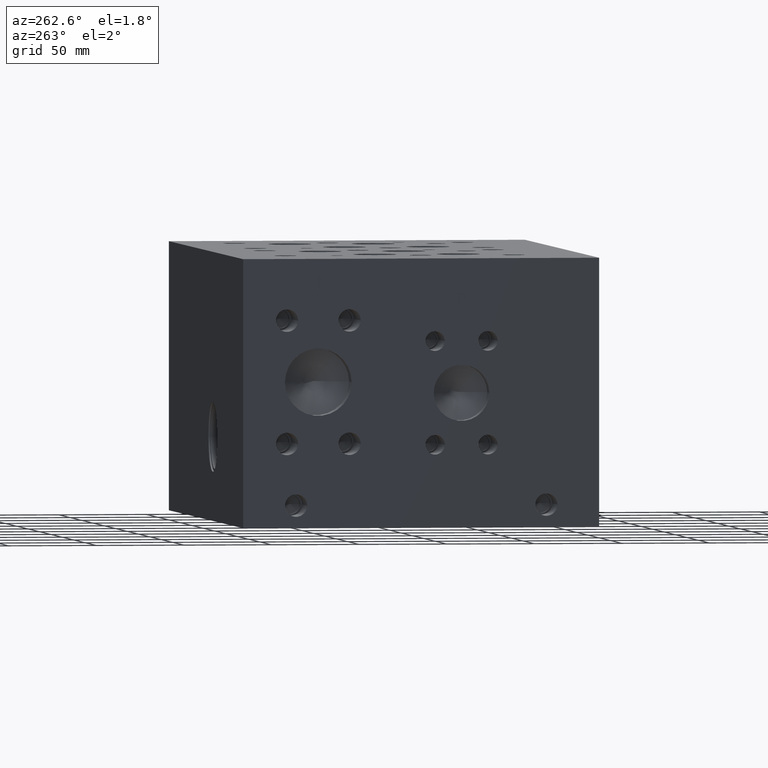
[diagram: clean part render]
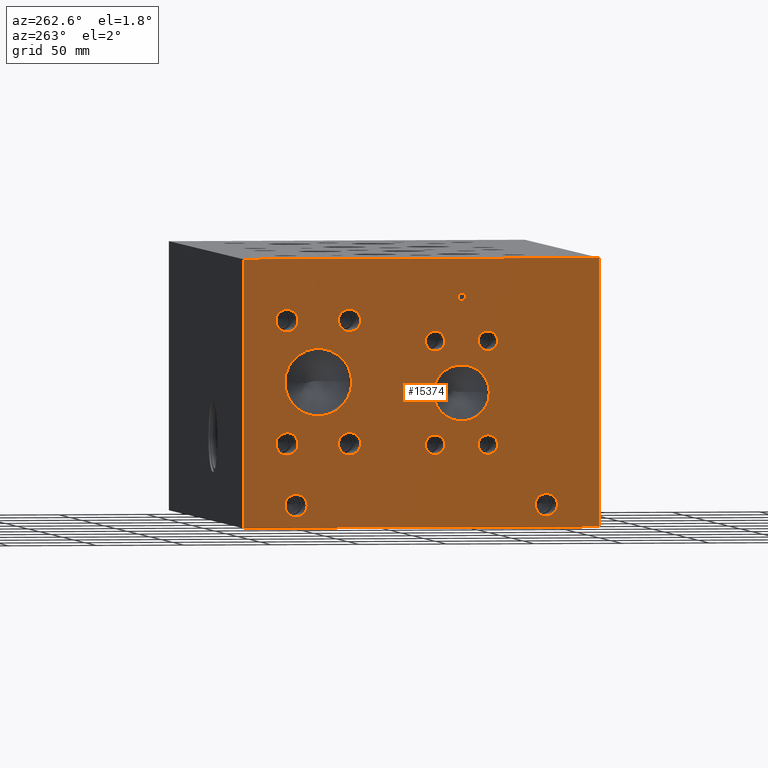
[diagram: same view with one face highlighted and labeled with its STEP entity id]
A machine part, auxiliary view. The second image highlights one B-rep face of the part: STEP entity #15374.
In plain terms, the highlighted planar face has unit normal (-1, 0, 0).
Its self-contained STEP definition (entity closure, byte-faithful):
#308=CIRCLE('',#16107,19.05);
#309=CIRCLE('',#16108,19.05);
#310=CIRCLE('',#16109,6.35);
#311=CIRCLE('',#16110,6.35);
#312=CIRCLE('',#16111,6.35);
#313=CIRCLE('',#16112,6.35);
#314=CIRCLE('',#16113,6.35);
#315=CIRCLE('',#16114,6.35);
#316=CIRCLE('',#16115,6.35);
#317=CIRCLE('',#16116,6.35);
#318=CIRCLE('',#16117,15.875);
#319=CIRCLE('',#16118,15.875);
#320=CIRCLE('',#16119,5.5626);
#321=CIRCLE('',#16120,5.5626);
#322=CIRCLE('',#16121,5.5626);
#323=CIRCLE('',#16122,5.5626);
#324=CIRCLE('',#16123,5.5626);
#325=CIRCLE('',#16124,5.5626);
#326=CIRCLE('',#16125,5.5626);
#327=CIRCLE('',#16126,5.5626);
#328=CIRCLE('',#16127,6.35);
#329=CIRCLE('',#16128,6.35);
#330=CIRCLE('',#16129,6.35);
#331=CIRCLE('',#16130,6.35);
#827=FACE_BOUND('',#2834,.T.);
#828=FACE_BOUND('',#2835,.T.);
#829=FACE_BOUND('',#2836,.T.);
#830=FACE_BOUND('',#2837,.T.);
#831=FACE_BOUND('',#2838,.T.);
#832=FACE_BOUND('',#2839,.T.);
#833=FACE_BOUND('',#2840,.T.);
#834=FACE_BOUND('',#2841,.T.);
#835=FACE_BOUND('',#2842,.T.);
#836=FACE_BOUND('',#2843,.T.);
#837=FACE_BOUND('',#2844,.T.);
#838=FACE_BOUND('',#2845,.T.);
#839=FACE_BOUND('',#2846,.T.);
#840=FACE_BOUND('',#2847,.T.);
#1247=B_SPLINE_CURVE_WITH_KNOTS('',2,(#25530,#25531,#25532,#25533),
 .UNSPECIFIED.,.F.,.F.,(3,1,3),(0.,1.,2.),.UNSPECIFIED.);
#1249=B_SPLINE_CURVE_WITH_KNOTS('',2,(#25551,#25552,#25553,#25554),
 .UNSPECIFIED.,.F.,.F.,(3,1,3),(0.,1.,2.),.UNSPECIFIED.);
#1251=B_SPLINE_CURVE_WITH_KNOTS('',2,(#25600,#25601,#25602,#25603),
 .UNSPECIFIED.,.F.,.F.,(3,1,3),(0.,1.,2.),.UNSPECIFIED.);
#1253=B_SPLINE_CURVE_WITH_KNOTS('',2,(#25618,#25619,#25620,#25621),
 .UNSPECIFIED.,.F.,.F.,(3,1,3),(0.,1.,2.),.UNSPECIFIED.);
#1936=FACE_OUTER_BOUND('',#2833,.T.);
#2833=EDGE_LOOP('',(#12443,#12444,#12445,#12446));
#2834=EDGE_LOOP('',(#12447,#12448));
#2835=EDGE_LOOP('',(#12449,#12450));
#2836=EDGE_LOOP('',(#12451,#12452));
#2837=EDGE_LOOP('',(#12453,#12454));
#2838=EDGE_LOOP('',(#12455,#12456));
#2839=EDGE_LOOP('',(#12457,#12458));
#2840=EDGE_LOOP('',(#12459,#12460));
#2841=EDGE_LOOP('',(#12461,#12462));
#2842=EDGE_LOOP('',(#12463,#12464));
#2843=EDGE_LOOP('',(#12465,#12466));
#2844=EDGE_LOOP('',(#12467,#12468));
#2845=EDGE_LOOP('',(#12469,#12470));
#2846=EDGE_LOOP('',(#12471,#12472,#12473,#12474,#12475,#12476,#12477,#12478));
#2847=EDGE_LOOP('',(#12479,#12480,#12481,#12482,#12483,#12484,#12485,#12486,
#12487));
#3561=LINE('',#22841,#4892);
#4290=LINE('',#25563,#5621);
#4293=LINE('',#25569,#5624);
#4296=LINE('',#25575,#5627);
#4299=LINE('',#25581,#5630);
#4302=LINE('',#25587,#5633);
#4306=LINE('',#25629,#5637);
#4307=LINE('',#25631,#5638);
#4308=LINE('',#25632,#5639);
#4309=LINE('',#25683,#5640);
#4310=LINE('',#25685,#5641);
#4311=LINE('',#25687,#5642);
#4312=LINE('',#25689,#5643);
#4313=LINE('',#25691,#5644);
#4314=LINE('',#25693,#5645);
#4315=LINE('',#25695,#5646);
#4316=LINE('',#25696,#5647);
#4892=VECTOR('',#17353,10.);
#5621=VECTOR('',#18734,10.);
#5624=VECTOR('',#18739,10.);
#5627=VECTOR('',#18744,10.);
#5630=VECTOR('',#18749,10.);
#5633=VECTOR('',#18754,10.);
#5637=VECTOR('',#18762,10.);
#5638=VECTOR('',#18763,10.);
#5639=VECTOR('',#18764,10.);
#5640=VECTOR('',#18813,10.);
#5641=VECTOR('',#18814,10.);
#5642=VECTOR('',#18815,10.);
#5643=VECTOR('',#18816,10.);
#5644=VECTOR('',#18817,10.);
#5645=VECTOR('',#18818,10.);
#5646=VECTOR('',#18819,10.);
#5647=VECTOR('',#18820,10.);
#6242=VERTEX_POINT('',#22834);
#6245=VERTEX_POINT('',#22839);
#6882=VERTEX_POINT('',#25528);
#6883=VERTEX_POINT('',#25529);
#6886=VERTEX_POINT('',#25550);
#6888=VERTEX_POINT('',#25562);
#6890=VERTEX_POINT('',#25568);
#6892=VERTEX_POINT('',#25574);
#6894=VERTEX_POINT('',#25580);
#6896=VERTEX_POINT('',#25586);
#6898=VERTEX_POINT('',#25599);
#6900=VERTEX_POINT('',#25628);
#6901=VERTEX_POINT('',#25630);
#6902=VERTEX_POINT('',#25633);
#6903=VERTEX_POINT('',#25634);
#6904=VERTEX_POINT('',#25637);
#6905=VERTEX_POINT('',#25638);
#6906=VERTEX_POINT('',#25641);
#6907=VERTEX_POINT('',#25642);
#6908=VERTEX_POINT('',#25645);
#6909=VERTEX_POINT('',#25646);
#6910=VERTEX_POINT('',#25649);
#6911=VERTEX_POINT('',#25650);
#6912=VERTEX_POINT('',#25653);
#6913=VERTEX_POINT('',#25654);
#6914=VERTEX_POINT('',#25657);
#6915=VERTEX_POINT('',#25658);
#6916=VERTEX_POINT('',#25661);
#6917=VERTEX_POINT('',#25662);
#6918=VERTEX_POINT('',#25665);
#6919=VERTEX_POINT('',#25666);
#6920=VERTEX_POINT('',#25669);
#6921=VERTEX_POINT('',#25670);
#6922=VERTEX_POINT('',#25673);
#6923=VERTEX_POINT('',#25674);
#6924=VERTEX_POINT('',#25677);
#6925=VERTEX_POINT('',#25678);
#6926=VERTEX_POINT('',#25681);
#6927=VERTEX_POINT('',#25682);
#6928=VERTEX_POINT('',#25684);
#6929=VERTEX_POINT('',#25686);
#6930=VERTEX_POINT('',#25688);
#6931=VERTEX_POINT('',#25690);
#6932=VERTEX_POINT('',#25692);
#6933=VERTEX_POINT('',#25694);
#7958=EDGE_CURVE('',#6242,#6245,#3561,.T.);
#8878=EDGE_CURVE('',#6882,#6883,#1247,.T.);
#8882=EDGE_CURVE('',#6886,#6882,#1249,.T.);
#8885=EDGE_CURVE('',#6888,#6886,#4290,.T.);
#8888=EDGE_CURVE('',#6890,#6888,#4293,.T.);
#8891=EDGE_CURVE('',#6892,#6890,#4296,.T.);
#8894=EDGE_CURVE('',#6894,#6892,#4299,.T.);
#8897=EDGE_CURVE('',#6896,#6894,#4302,.T.);
#8900=EDGE_CURVE('',#6898,#6896,#1251,.T.);
#8903=EDGE_CURVE('',#6883,#6898,#1253,.T.);
#8905=EDGE_CURVE('',#6900,#6242,#4306,.T.);
#8906=EDGE_CURVE('',#6901,#6245,#4307,.T.);
#8907=EDGE_CURVE('',#6900,#6901,#4308,.T.);
#8908=EDGE_CURVE('',#6902,#6903,#308,.T.);
#8909=EDGE_CURVE('',#6903,#6902,#309,.T.);
#8910=EDGE_CURVE('',#6904,#6905,#310,.T.);
#8911=EDGE_CURVE('',#6905,#6904,#311,.T.);
#8912=EDGE_CURVE('',#6906,#6907,#312,.T.);
#8913=EDGE_CURVE('',#6907,#6906,#313,.T.);
#8914=EDGE_CURVE('',#6908,#6909,#314,.T.);
#8915=EDGE_CURVE('',#6909,#6908,#315,.T.);
#8916=EDGE_CURVE('',#6910,#6911,#316,.T.);
#8917=EDGE_CURVE('',#6911,#6910,#317,.T.);
#8918=EDGE_CURVE('',#6912,#6913,#318,.T.);
#8919=EDGE_CURVE('',#6913,#6912,#319,.T.);
#8920=EDGE_CURVE('',#6914,#6915,#320,.T.);
#8921=EDGE_CURVE('',#6915,#6914,#321,.T.);
#8922=EDGE_CURVE('',#6916,#6917,#322,.T.);
#8923=EDGE_CURVE('',#6917,#6916,#323,.T.);
#8924=EDGE_CURVE('',#6918,#6919,#324,.T.);
#8925=EDGE_CURVE('',#6919,#6918,#325,.T.);
#8926=EDGE_CURVE('',#6920,#6921,#326,.T.);
#8927=EDGE_CURVE('',#6921,#6920,#327,.T.);
#8928=EDGE_CURVE('',#6922,#6923,#328,.T.);
#8929=EDGE_CURVE('',#6923,#6922,#329,.T.);
#8930=EDGE_CURVE('',#6924,#6925,#330,.T.);
#8931=EDGE_CURVE('',#6925,#6924,#331,.T.);
#8932=EDGE_CURVE('',#6926,#6927,#4309,.T.);
#8933=EDGE_CURVE('',#6927,#6928,#4310,.T.);
#8934=EDGE_CURVE('',#6928,#6929,#4311,.T.);
#8935=EDGE_CURVE('',#6929,#6930,#4312,.T.);
#8936=EDGE_CURVE('',#6930,#6931,#4313,.T.);
#8937=EDGE_CURVE('',#6931,#6932,#4314,.T.);
#8938=EDGE_CURVE('',#6932,#6933,#4315,.T.);
#8939=EDGE_CURVE('',#6933,#6926,#4316,.T.);
#12443=ORIENTED_EDGE('',*,*,#8905,.T.);
#12444=ORIENTED_EDGE('',*,*,#7958,.T.);
#12445=ORIENTED_EDGE('',*,*,#8906,.F.);
#12446=ORIENTED_EDGE('',*,*,#8907,.F.);
#12447=ORIENTED_EDGE('',*,*,#8908,.T.);
#12448=ORIENTED_EDGE('',*,*,#8909,.T.);
#12449=ORIENTED_EDGE('',*,*,#8910,.T.);
#12450=ORIENTED_EDGE('',*,*,#8911,.T.);
#12451=ORIENTED_EDGE('',*,*,#8912,.T.);
#12452=ORIENTED_EDGE('',*,*,#8913,.T.);
#12453=ORIENTED_EDGE('',*,*,#8914,.T.);
#12454=ORIENTED_EDGE('',*,*,#8915,.T.);
#12455=ORIENTED_EDGE('',*,*,#8916,.T.);
#12456=ORIENTED_EDGE('',*,*,#8917,.T.);
#12457=ORIENTED_EDGE('',*,*,#8918,.T.);
#12458=ORIENTED_EDGE('',*,*,#8919,.T.);
#12459=ORIENTED_EDGE('',*,*,#8920,.T.);
#12460=ORIENTED_EDGE('',*,*,#8921,.T.);
#12461=ORIENTED_EDGE('',*,*,#8922,.T.);
#12462=ORIENTED_EDGE('',*,*,#8923,.T.);
#12463=ORIENTED_EDGE('',*,*,#8924,.T.);
#12464=ORIENTED_EDGE('',*,*,#8925,.T.);
#12465=ORIENTED_EDGE('',*,*,#8926,.T.);
#12466=ORIENTED_EDGE('',*,*,#8927,.T.);
#12467=ORIENTED_EDGE('',*,*,#8928,.T.);
#12468=ORIENTED_EDGE('',*,*,#8929,.T.);
#12469=ORIENTED_EDGE('',*,*,#8930,.T.);
#12470=ORIENTED_EDGE('',*,*,#8931,.T.);
#12471=ORIENTED_EDGE('',*,*,#8932,.T.);
#12472=ORIENTED_EDGE('',*,*,#8933,.T.);
#12473=ORIENTED_EDGE('',*,*,#8934,.T.);
#12474=ORIENTED_EDGE('',*,*,#8935,.T.);
#12475=ORIENTED_EDGE('',*,*,#8936,.T.);
#12476=ORIENTED_EDGE('',*,*,#8937,.T.);
#12477=ORIENTED_EDGE('',*,*,#8938,.T.);
#12478=ORIENTED_EDGE('',*,*,#8939,.T.);
#12479=ORIENTED_EDGE('',*,*,#8878,.T.);
#12480=ORIENTED_EDGE('',*,*,#8903,.T.);
#12481=ORIENTED_EDGE('',*,*,#8900,.T.);
#12482=ORIENTED_EDGE('',*,*,#8897,.T.);
#12483=ORIENTED_EDGE('',*,*,#8894,.T.);
#12484=ORIENTED_EDGE('',*,*,#8891,.T.);
#12485=ORIENTED_EDGE('',*,*,#8888,.T.);
#12486=ORIENTED_EDGE('',*,*,#8885,.T.);
#12487=ORIENTED_EDGE('',*,*,#8882,.T.);
#14276=PLANE('',#16106);
#15374=ADVANCED_FACE('',(#1936,#827,#828,#829,#830,#831,#832,#833,#834,
#835,#836,#837,#838,#839,#840),#14276,.T.);
#16106=AXIS2_PLACEMENT_3D('',#25627,#18760,#18761);
#16107=AXIS2_PLACEMENT_3D('',#25635,#18765,#18766);
#16108=AXIS2_PLACEMENT_3D('',#25636,#18767,#18768);
#16109=AXIS2_PLACEMENT_3D('',#25639,#18769,#18770);
#16110=AXIS2_PLACEMENT_3D('',#25640,#18771,#18772);
#16111=AXIS2_PLACEMENT_3D('',#25643,#18773,#18774);
#16112=AXIS2_PLACEMENT_3D('',#25644,#18775,#18776);
#16113=AXIS2_PLACEMENT_3D('',#25647,#18777,#18778);
#16114=AXIS2_PLACEMENT_3D('',#25648,#18779,#18780);
#16115=AXIS2_PLACEMENT_3D('',#25651,#18781,#18782);
#16116=AXIS2_PLACEMENT_3D('',#25652,#18783,#18784);
#16117=AXIS2_PLACEMENT_3D('',#25655,#18785,#18786);
#16118=AXIS2_PLACEMENT_3D('',#25656,#18787,#18788);
#16119=AXIS2_PLACEMENT_3D('',#25659,#18789,#18790);
#16120=AXIS2_PLACEMENT_3D('',#25660,#18791,#18792);
#16121=AXIS2_PLACEMENT_3D('',#25663,#18793,#18794);
#16122=AXIS2_PLACEMENT_3D('',#25664,#18795,#18796);
#16123=AXIS2_PLACEMENT_3D('',#25667,#18797,#18798);
#16124=AXIS2_PLACEMENT_3D('',#25668,#18799,#18800);
#16125=AXIS2_PLACEMENT_3D('',#25671,#18801,#18802);
#16126=AXIS2_PLACEMENT_3D('',#25672,#18803,#18804);
#16127=AXIS2_PLACEMENT_3D('',#25675,#18805,#18806);
#16128=AXIS2_PLACEMENT_3D('',#25676,#18807,#18808);
#16129=AXIS2_PLACEMENT_3D('',#25679,#18809,#18810);
#16130=AXIS2_PLACEMENT_3D('',#25680,#18811,#18812);
#17353=DIRECTION('',(0.,0.,1.));
#18734=DIRECTION('',(0.,-1.,-1.11355060845355E-14));
#18739=DIRECTION('',(0.,-2.79741238752512E-15,1.));
#18744=DIRECTION('',(0.,1.,0.));
#18749=DIRECTION('',(0.,0.,-1.));
#18754=DIRECTION('',(0.,1.,0.));
#18760=DIRECTION('center_axis',(-1.,0.,0.));
#18761=DIRECTION('ref_axis',(0.,-1.,0.));
#18762=DIRECTION('',(0.,-1.,0.));
#18763=DIRECTION('',(0.,-1.,0.));
#18764=DIRECTION('',(0.,0.,1.));
#18765=DIRECTION('center_axis',(1.,0.,0.));
#18766=DIRECTION('ref_axis',(0.,1.,0.));
#18767=DIRECTION('center_axis',(1.,0.,0.));
#18768=DIRECTION('ref_axis',(0.,1.,0.));
#18769=DIRECTION('center_axis',(1.,0.,0.));
#18770=DIRECTION('ref_axis',(0.,1.,0.));
#18771=DIRECTION('center_axis',(1.,0.,0.));
#18772=DIRECTION('ref_axis',(0.,1.,0.));
#18773=DIRECTION('center_axis',(1.,0.,0.));
#18774=DIRECTION('ref_axis',(0.,1.,0.));
#18775=DIRECTION('center_axis',(1.,0.,0.));
#18776=DIRECTION('ref_axis',(0.,1.,0.));
#18777=DIRECTION('center_axis',(1.,0.,0.));
#18778=DIRECTION('ref_axis',(0.,1.,0.));
#18779=DIRECTION('center_axis',(1.,0.,0.));
#18780=DIRECTION('ref_axis',(0.,1.,0.));
#18781=DIRECTION('center_axis',(1.,0.,0.));
#18782=DIRECTION('ref_axis',(0.,1.,0.));
#18783=DIRECTION('center_axis',(1.,0.,0.));
#18784=DIRECTION('ref_axis',(0.,1.,0.));
#18785=DIRECTION('center_axis',(1.,0.,0.));
#18786=DIRECTION('ref_axis',(0.,1.,0.));
#18787=DIRECTION('center_axis',(1.,0.,0.));
#18788=DIRECTION('ref_axis',(0.,1.,0.));
#18789=DIRECTION('center_axis',(1.,0.,0.));
#18790=DIRECTION('ref_axis',(0.,1.,0.));
#18791=DIRECTION('center_axis',(1.,0.,0.));
#18792=DIRECTION('ref_axis',(0.,1.,0.));
#18793=DIRECTION('center_axis',(1.,0.,0.));
#18794=DIRECTION('ref_axis',(0.,1.,0.));
#18795=DIRECTION('center_axis',(1.,0.,0.));
#18796=DIRECTION('ref_axis',(0.,1.,0.));
#18797=DIRECTION('center_axis',(1.,0.,0.));
#18798=DIRECTION('ref_axis',(0.,1.,0.));
#18799=DIRECTION('center_axis',(1.,0.,0.));
#18800=DIRECTION('ref_axis',(0.,1.,0.));
#18801=DIRECTION('center_axis',(1.,0.,0.));
#18802=DIRECTION('ref_axis',(0.,1.,0.));
#18803=DIRECTION('center_axis',(1.,0.,0.));
#18804=DIRECTION('ref_axis',(0.,1.,0.));
#18805=DIRECTION('center_axis',(1.,0.,0.));
#18806=DIRECTION('ref_axis',(0.,1.,0.));
#18807=DIRECTION('center_axis',(1.,0.,0.));
#18808=DIRECTION('ref_axis',(0.,1.,0.));
#18809=DIRECTION('center_axis',(1.,0.,0.));
#18810=DIRECTION('ref_axis',(0.,1.,0.));
#18811=DIRECTION('center_axis',(1.,0.,0.));
#18812=DIRECTION('ref_axis',(0.,1.,0.));
#18813=DIRECTION('',(0.,1.,0.));
#18814=DIRECTION('',(0.,0.,1.));
#18815=DIRECTION('',(0.,1.,8.33818088455555E-15));
#18816=DIRECTION('',(0.,0.,1.));
#18817=DIRECTION('',(0.,-1.,-3.47984565141733E-15));
#18818=DIRECTION('',(0.,0.,-1.));
#18819=DIRECTION('',(0.,1.,8.33818088455555E-15));
#18820=DIRECTION('',(0.,0.,-1.));
#22834=CARTESIAN_POINT('',(0.,0.,0.));
#22839=CARTESIAN_POINT('',(0.,0.,152.4));
#22841=CARTESIAN_POINT('',(0.,0.,0.));
#25528=CARTESIAN_POINT('',(0.,77.0619327976406,132.160018143971));
#25529=CARTESIAN_POINT('',(0.,76.305490345468,130.641987372604));
#25530=CARTESIAN_POINT('Ctrl Pts',(0.,77.0619327976406,132.160018143971));
#25531=CARTESIAN_POINT('Ctrl Pts',(0.,76.7068679731514,131.918162393956));
#25532=CARTESIAN_POINT('Ctrl Pts',(0.,76.305490345468,131.172011675827));
#25533=CARTESIAN_POINT('Ctrl Pts',(0.,76.305490345468,130.641987372604));
#25550=CARTESIAN_POINT('',(0.,78.7240478456117,132.556249904633));
#25551=CARTESIAN_POINT('Ctrl Pts',(0.,78.7240478456117,132.556249904633));
#25552=CARTESIAN_POINT('Ctrl Pts',(0.,78.1580024732376,132.556249904633));
#25553=CARTESIAN_POINT('Ctrl Pts',(0.,77.3655389519139,132.370998691856));
#25554=CARTESIAN_POINT('Ctrl Pts',(0.,77.0619327976406,132.160018143971));
#25562=CARTESIAN_POINT('',(0.,80.3192666223022,132.556249904633));
#25563=CARTESIAN_POINT('',(0.,141.75963331115,132.556249904633));
#25568=CARTESIAN_POINT('',(0.,80.3192666223022,126.20625));
#25569=CARTESIAN_POINT('',(0.,80.3192666223024,63.1031249999998));
#25574=CARTESIAN_POINT('',(0.,79.4753444307627,126.20625));
#25575=CARTESIAN_POINT('',(0.,141.337672215381,126.20625));
#25580=CARTESIAN_POINT('',(0.,79.4753444307627,128.573348829928));
#25581=CARTESIAN_POINT('',(0.,79.4753444307627,64.2866744149639));
#25586=CARTESIAN_POINT('',(0.,78.7600689147628,128.573348829928));
#25587=CARTESIAN_POINT('',(0.,140.980034457381,128.573348829928));
#25599=CARTESIAN_POINT('',(0.,76.8612439837989,129.23201980869));
#25600=CARTESIAN_POINT('Ctrl Pts',(0.,76.8612439837989,129.23201980869));
#25601=CARTESIAN_POINT('Ctrl Pts',(0.,77.1905794731802,128.907830186331));
#25602=CARTESIAN_POINT('Ctrl Pts',(0.,78.0808144679139,128.573348829928));
#25603=CARTESIAN_POINT('Ctrl Pts',(0.,78.7600689147628,128.573348829928));
#25618=CARTESIAN_POINT('Ctrl Pts',(0.,76.305490345468,130.641987372604));
#25619=CARTESIAN_POINT('Ctrl Pts',(0.,76.305490345468,130.230318010877));
#25620=CARTESIAN_POINT('Ctrl Pts',(0.,76.5988047656982,129.48931315977));
#25621=CARTESIAN_POINT('Ctrl Pts',(0.,76.8612439837989,129.23201980869));
#25627=CARTESIAN_POINT('Origin',(0.,203.2,0.));
#25628=CARTESIAN_POINT('',(0.,203.2,0.));
#25629=CARTESIAN_POINT('',(0.,203.2,0.));
#25630=CARTESIAN_POINT('',(0.,203.2,152.4));
#25631=CARTESIAN_POINT('',(0.,203.2,152.4));
#25632=CARTESIAN_POINT('',(0.,203.2,0.));
#25633=CARTESIAN_POINT('',(0.,179.4002,82.55));
#25634=CARTESIAN_POINT('',(0.,141.3002,82.55));
#25635=CARTESIAN_POINT('Origin',(0.,160.3502,82.55));
#25636=CARTESIAN_POINT('Origin',(0.,160.3502,82.55));
#25637=CARTESIAN_POINT('',(0.,148.844,117.475));
#25638=CARTESIAN_POINT('',(2.22044604925031E-15,136.144,117.475));
#25639=CARTESIAN_POINT('Origin',(0.,142.494,117.475));
#25640=CARTESIAN_POINT('Origin',(0.,142.494,117.475));
#25641=CARTESIAN_POINT('',(0.,184.5564,117.475));
#25642=CARTESIAN_POINT('',(2.22044604925031E-15,171.8564,117.475));
#25643=CARTESIAN_POINT('Origin',(0.,178.2064,117.475));
#25644=CARTESIAN_POINT('Origin',(0.,178.2064,117.475));
#25645=CARTESIAN_POINT('',(0.,148.844,47.625));
#25646=CARTESIAN_POINT('',(2.22044604925031E-15,136.144,47.625));
#25647=CARTESIAN_POINT('Origin',(0.,142.494,47.625));
#25648=CARTESIAN_POINT('Origin',(0.,142.494,47.625));
#25649=CARTESIAN_POINT('',(0.,184.5564,47.625));
#25650=CARTESIAN_POINT('',(2.22044604925031E-15,171.8564,47.625));
#25651=CARTESIAN_POINT('Origin',(0.,178.2064,47.625));
#25652=CARTESIAN_POINT('Origin',(0.,178.2064,47.625));
#25653=CARTESIAN_POINT('',(0.,94.4626,76.2));
#25654=CARTESIAN_POINT('',(0.,62.7126,76.2));
#25655=CARTESIAN_POINT('Origin',(0.,78.5876,76.2));
#25656=CARTESIAN_POINT('Origin',(0.,78.5876,76.2));
#25657=CARTESIAN_POINT('',(0.,99.2378,46.8376));
#25658=CARTESIAN_POINT('',(0.,88.1126,46.8376));
#25659=CARTESIAN_POINT('Origin',(0.,93.6752,46.8376));
#25660=CARTESIAN_POINT('Origin',(0.,93.6752,46.8376));
#25661=CARTESIAN_POINT('',(0.,69.06768,105.5624));
#25662=CARTESIAN_POINT('',(0.,57.94248,105.5624));
#25663=CARTESIAN_POINT('Origin',(0.,63.50508,105.5624));
#25664=CARTESIAN_POINT('Origin',(0.,63.50508,105.5624));
#25665=CARTESIAN_POINT('',(0.,99.2378,105.56748));
#25666=CARTESIAN_POINT('',(0.,88.1126,105.56748));
#25667=CARTESIAN_POINT('Origin',(0.,93.6752,105.56748));
#25668=CARTESIAN_POINT('Origin',(0.,93.6752,105.56748));
#25669=CARTESIAN_POINT('',(0.,69.06768,46.83252));
#25670=CARTESIAN_POINT('',(0.,57.94248,46.83252));
#25671=CARTESIAN_POINT('Origin',(0.,63.50508,46.83252));
#25672=CARTESIAN_POINT('Origin',(0.,63.50508,46.83252));
#25673=CARTESIAN_POINT('',(0.,179.3748,12.7));
#25674=CARTESIAN_POINT('',(0.,166.6748,12.7));
#25675=CARTESIAN_POINT('Origin',(0.,173.0248,12.7));
#25676=CARTESIAN_POINT('Origin',(0.,173.0248,12.7));
#25677=CARTESIAN_POINT('',(0.,36.5252,12.7));
#25678=CARTESIAN_POINT('',(0.,23.8252,12.7));
#25679=CARTESIAN_POINT('Origin',(0.,30.1752,12.7));
#25680=CARTESIAN_POINT('Origin',(0.,30.1752,12.7));
#25681=CARTESIAN_POINT('',(0.,159.749584728547,135.73125));
#25682=CARTESIAN_POINT('',(0.,160.593506920087,135.73125));
#25683=CARTESIAN_POINT('',(0.,181.474792364274,135.73125));
#25684=CARTESIAN_POINT('',(0.,160.593506920087,141.329953319482));
#25685=CARTESIAN_POINT('',(0.,160.593506920087,67.865625));
#25686=CARTESIAN_POINT('',(0.,162.723895867022,141.329953319482));
#25687=CARTESIAN_POINT('',(0.,181.896753460043,141.329953319482));
#25688=CARTESIAN_POINT('',(0.,162.723895867022,142.081249904633));
#25689=CARTESIAN_POINT('',(0.,162.723895867022,70.6649766597408));
#25690=CARTESIAN_POINT('',(0.,157.619195781612,142.081249904633));
#25691=CARTESIAN_POINT('',(0.,182.961947933511,142.081249904633));
#25692=CARTESIAN_POINT('',(0.,157.619195781612,141.329953319482));
#25693=CARTESIAN_POINT('',(0.,157.619195781612,71.0406249523163));
#25694=CARTESIAN_POINT('',(0.,159.749584728547,141.329953319482));
#25695=CARTESIAN_POINT('',(0.,180.409597890805,141.329953319482));
#25696=CARTESIAN_POINT('',(0.,159.749584728547,70.6649766597408));